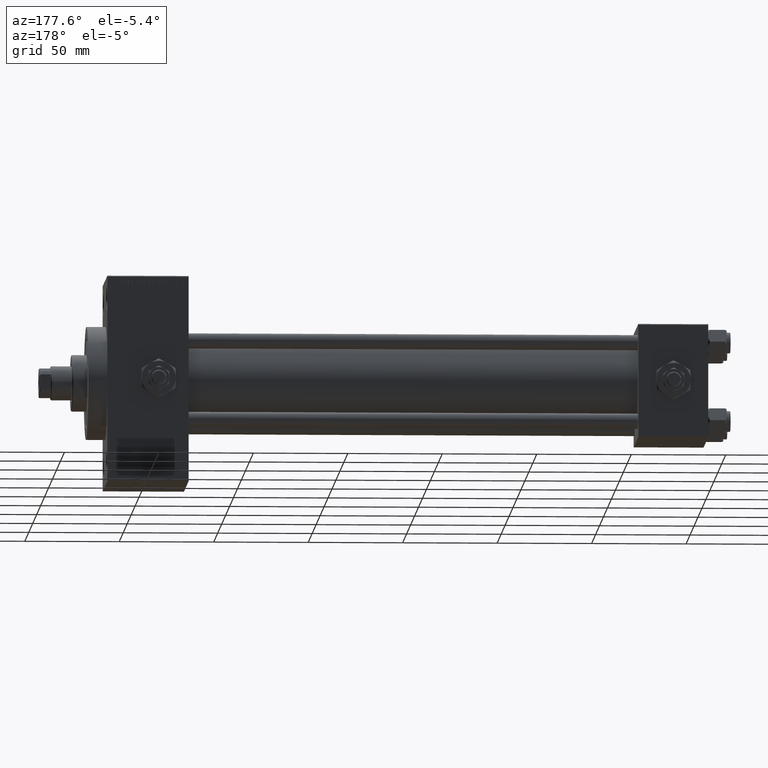
[diagram: clean part render]
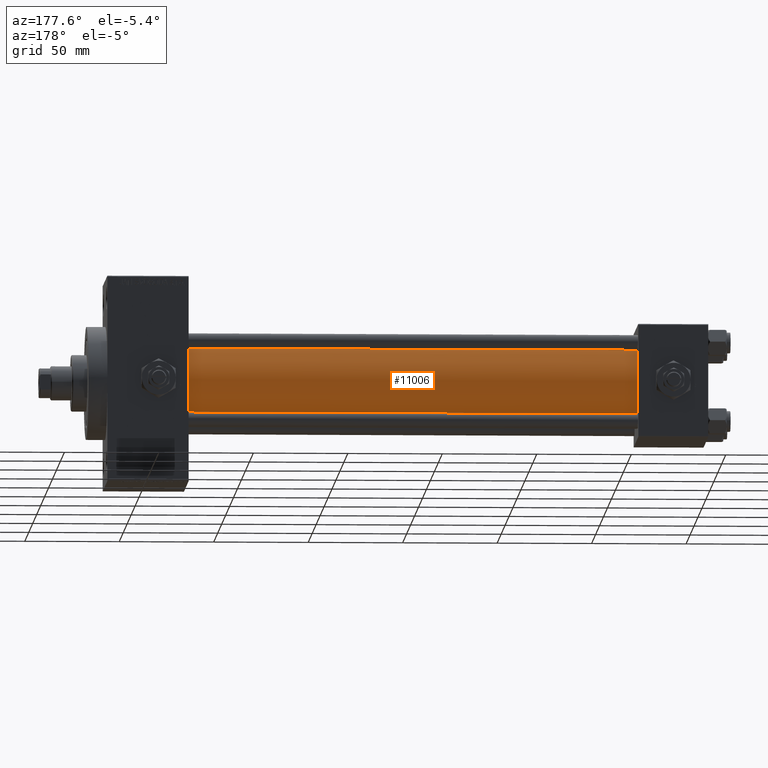
[diagram: same view with one face highlighted and labeled with its STEP entity id]
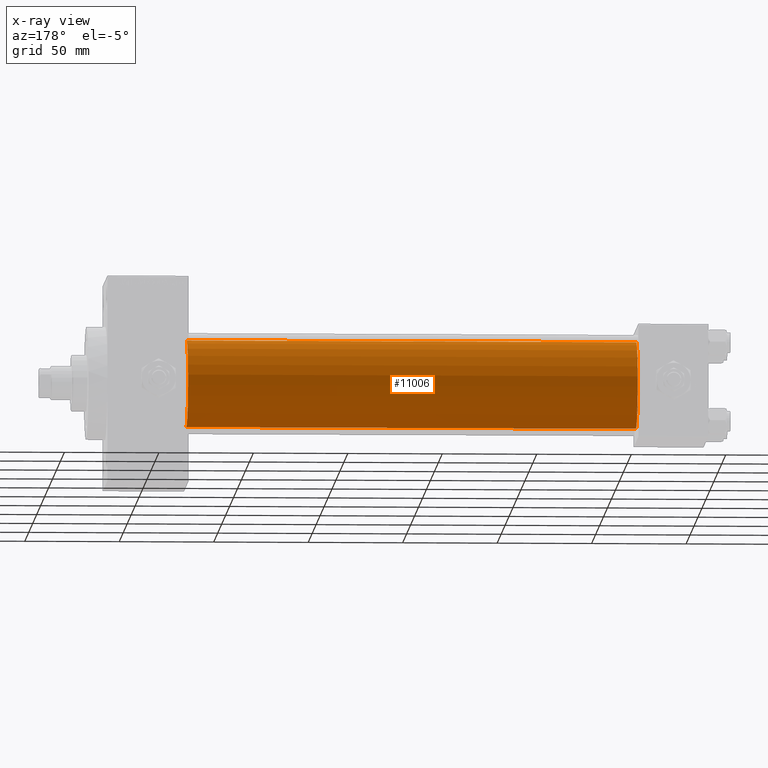
[diagram: x-ray of the same camera — body ghosted, the highlighted face saturated]
A machine part, auxiliary view. The second image highlights one B-rep face of the part: STEP entity #11006.
The next image is the same camera in x-ray: the body ghosted, the highlighted face saturated — about 0% of this face is hidden behind the body in this view.
In plain terms, the highlighted cylindrical surface (partial cylindrical patch) has radius 23 mm, axis along (-1, -0, -0).
Its self-contained STEP definition (entity closure, byte-faithful):
#571 = VERTEX_POINT ( 'NONE', #1472 ) ;
#614 = DIRECTION ( 'NONE',  ( 1.000000000000000000, -0.000000000000000000, 0.000000000000000000 ) ) ;
#1472 = CARTESIAN_POINT ( 'NONE',  ( 37.00000000000000711, 2.146024240737016609E-16, -23.00000000000000000 ) ) ;
#4039 = ORIENTED_EDGE ( 'NONE', *, *, #35406, .F. ) ;
#4200 = LINE ( 'NONE', #4441, #11089 ) ;
#4441 = CARTESIAN_POINT ( 'NONE',  ( 274.9999999999999432, 2.146024240737016609E-16, -23.00000000000000000 ) ) ;
#4617 = AXIS2_PLACEMENT_3D ( 'NONE', #30399, #43149, #23618 ) ;
#5613 = DIRECTION ( 'NONE',  ( -1.000000000000000000, -0.000000000000000000, -0.000000000000000000 ) ) ;
#5792 = VERTEX_POINT ( 'NONE', #24371 ) ;
#8599 = ORIENTED_EDGE ( 'NONE', *, *, #39074, .T. ) ;
#11006 = ADVANCED_FACE ( 'NONE', ( #49422 ), #15129, .T. ) ;
#11089 = VECTOR ( 'NONE', #34263, 1000.000000000000000 ) ;
#11618 = AXIS2_PLACEMENT_3D ( 'NONE', #16091, #35366, #27107 ) ;
#15129 = CYLINDRICAL_SURFACE ( 'NONE', #4617, 23.00000000000000000 ) ;
#15479 = VERTEX_POINT ( 'NONE', #42951 ) ;
#16091 = CARTESIAN_POINT ( 'NONE',  ( 274.9999999999999432, -2.602085213965210642E-15, 0.000000000000000000 ) ) ;
#17375 = CARTESIAN_POINT ( 'NONE',  ( 274.9999999999999432, -2.602085213965210642E-15, 23.00000000000000000 ) ) ;
#22936 = EDGE_LOOP ( 'NONE', ( #45439, #8599, #34976, #4039 ) ) ;
#23618 = DIRECTION ( 'NONE',  ( 0.000000000000000000, 0.000000000000000000, 1.000000000000000000 ) ) ;
#24371 = CARTESIAN_POINT ( 'NONE',  ( 274.9999999999999432, -2.602085213965210642E-15, 23.00000000000000000 ) ) ;
#25329 = VECTOR ( 'NONE', #5613, 1000.000000000000000 ) ;
#27107 = DIRECTION ( 'NONE',  ( 0.000000000000000000, 0.000000000000000000, -1.000000000000000000 ) ) ;
#27873 = EDGE_CURVE ( 'NONE', #46246, #5792, #45986, .T. ) ;
#30399 = CARTESIAN_POINT ( 'NONE',  ( 274.9999999999999432, -2.602085213965210642E-15, 0.000000000000000000 ) ) ;
#32654 = LINE ( 'NONE', #17375, #25329 ) ;
#32870 = EDGE_CURVE ( 'NONE', #571, #15479, #48406, .T. ) ;
#34131 = AXIS2_PLACEMENT_3D ( 'NONE', #38659, #614, #39393 ) ;
#34263 = DIRECTION ( 'NONE',  ( -1.000000000000000000, -0.000000000000000000, -0.000000000000000000 ) ) ;
#34809 = CARTESIAN_POINT ( 'NONE',  ( 274.9999999999999432, 2.146024240737016609E-16, -23.00000000000000000 ) ) ;
#34976 = ORIENTED_EDGE ( 'NONE', *, *, #32870, .T. ) ;
#35366 = DIRECTION ( 'NONE',  ( 1.000000000000000000, 0.000000000000000000, 0.000000000000000000 ) ) ;
#35406 = EDGE_CURVE ( 'NONE', #5792, #15479, #32654, .T. ) ;
#38659 = CARTESIAN_POINT ( 'NONE',  ( 37.00000000000000711, -2.602085213965210642E-15, 0.000000000000000000 ) ) ;
#39074 = EDGE_CURVE ( 'NONE', #46246, #571, #4200, .T. ) ;
#39393 = DIRECTION ( 'NONE',  ( 0.000000000000000000, 0.000000000000000000, 1.000000000000000000 ) ) ;
#42951 = CARTESIAN_POINT ( 'NONE',  ( 37.00000000000000711, -2.602085213965210642E-15, 23.00000000000000000 ) ) ;
#43149 = DIRECTION ( 'NONE',  ( -1.000000000000000000, -0.000000000000000000, -0.000000000000000000 ) ) ;
#45439 = ORIENTED_EDGE ( 'NONE', *, *, #27873, .F. ) ;
#45986 = CIRCLE ( 'NONE', #11618, 23.00000000000000000 ) ;
#46246 = VERTEX_POINT ( 'NONE', #34809 ) ;
#48406 = CIRCLE ( 'NONE', #34131, 23.00000000000000000 ) ;
#49422 = FACE_OUTER_BOUND ( 'NONE', #22936, .T. ) ;